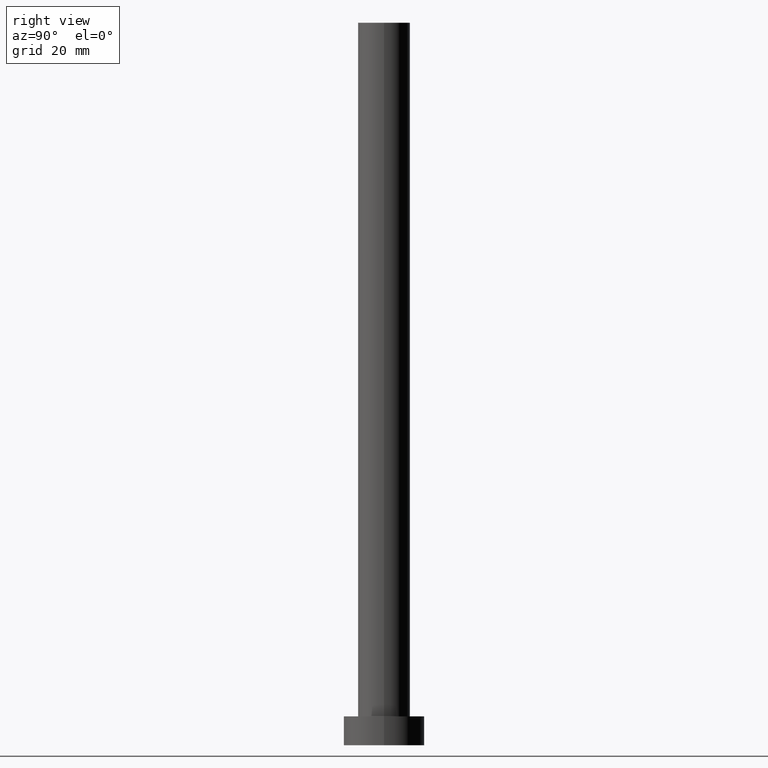
[diagram: clean part render]
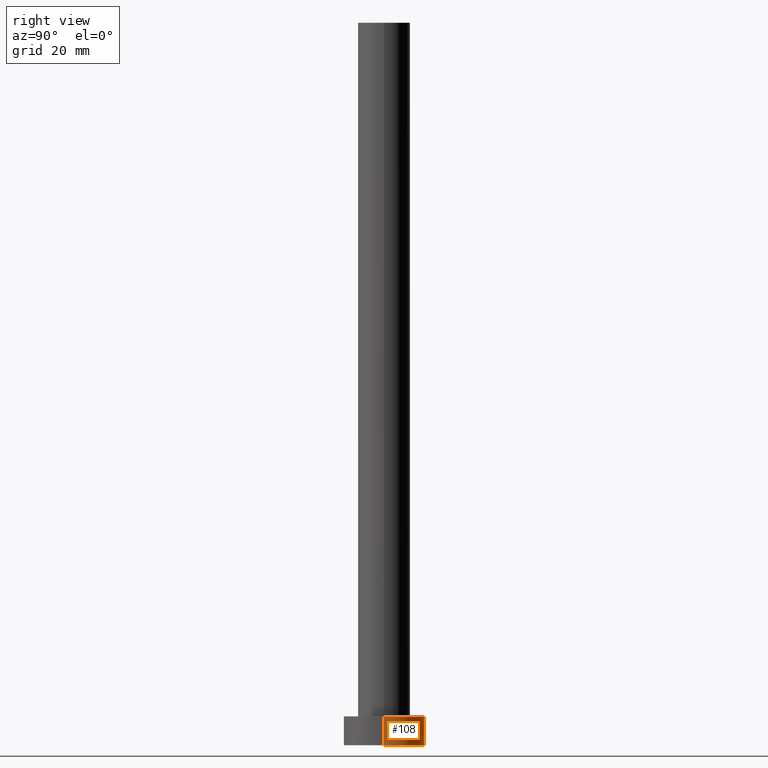
[diagram: same view with one face highlighted and labeled with its STEP entity id]
A machine part, right view. The second image highlights one B-rep face of the part: STEP entity #108.
In plain terms, the highlighted cylindrical surface (partial cylindrical patch) has radius 7 mm, axis along (-0, -0, -1).
Its self-contained STEP definition (entity closure, byte-faithful):
#5 = CARTESIAN_POINT ( 'NONE',  ( 7.000000000000000000, 8.572527594031473190E-16, 0.000000000000000000 ) ) ;
#6 = CYLINDRICAL_SURFACE ( 'NONE', #186, 7.000000000000000000 ) ;
#8 = CARTESIAN_POINT ( 'NONE',  ( -7.000000000000000000, 0.000000000000000000, 5.000000000000000000 ) ) ;
#23 = EDGE_CURVE ( 'NONE', #100, #162, #190, .T. ) ;
#30 = CIRCLE ( 'NONE', #81, 7.000000000000000000 ) ;
#33 = EDGE_CURVE ( 'NONE', #117, #162, #30, .T. ) ;
#41 = VERTEX_POINT ( 'NONE', #44 ) ;
#44 = CARTESIAN_POINT ( 'NONE',  ( 7.000000000000000000, 8.572527594031473190E-16, 5.000000000000000000 ) ) ;
#50 = CARTESIAN_POINT ( 'NONE',  ( -7.000000000000000000, 0.000000000000000000, 0.000000000000000000 ) ) ;
#70 = CARTESIAN_POINT ( 'NONE',  ( 0.000000000000000000, 0.000000000000000000, 5.000000000000000000 ) ) ;
#74 = AXIS2_PLACEMENT_3D ( 'NONE', #70, #91, #109 ) ;
#80 = DIRECTION ( 'NONE',  ( 0.000000000000000000, 0.000000000000000000, 1.000000000000000000 ) ) ;
#81 = AXIS2_PLACEMENT_3D ( 'NONE', #104, #80, #208 ) ;
#84 = DIRECTION ( 'NONE',  ( -1.000000000000000000, 0.000000000000000000, 0.000000000000000000 ) ) ;
#91 = DIRECTION ( 'NONE',  ( 0.000000000000000000, 0.000000000000000000, 1.000000000000000000 ) ) ;
#99 = VECTOR ( 'NONE', #219, 1000.000000000000000 ) ;
#100 = VERTEX_POINT ( 'NONE', #8 ) ;
#101 = CIRCLE ( 'NONE', #74, 7.000000000000000000 ) ;
#102 = DIRECTION ( 'NONE',  ( -0.000000000000000000, -0.000000000000000000, -1.000000000000000000 ) ) ;
#104 = CARTESIAN_POINT ( 'NONE',  ( 0.000000000000000000, 0.000000000000000000, 0.000000000000000000 ) ) ;
#108 = ADVANCED_FACE ( 'NONE', ( #167 ), #6, .T. ) ;
#109 = DIRECTION ( 'NONE',  ( 1.000000000000000000, 0.000000000000000000, 0.000000000000000000 ) ) ;
#112 = ORIENTED_EDGE ( 'NONE', *, *, #23, .F. ) ;
#115 = ORIENTED_EDGE ( 'NONE', *, *, #193, .F. ) ;
#117 = VERTEX_POINT ( 'NONE', #5 ) ;
#123 = CARTESIAN_POINT ( 'NONE',  ( -7.000000000000000000, 0.000000000000000000, 5.000000000000000000 ) ) ;
#129 = CARTESIAN_POINT ( 'NONE',  ( 7.000000000000000000, 8.572527594031473190E-16, 5.000000000000000000 ) ) ;
#149 = LINE ( 'NONE', #129, #241 ) ;
#162 = VERTEX_POINT ( 'NONE', #50 ) ;
#167 = FACE_OUTER_BOUND ( 'NONE', #235, .T. ) ;
#178 = ORIENTED_EDGE ( 'NONE', *, *, #223, .T. ) ;
#186 = AXIS2_PLACEMENT_3D ( 'NONE', #204, #102, #84 ) ;
#190 = LINE ( 'NONE', #123, #99 ) ;
#193 = EDGE_CURVE ( 'NONE', #41, #100, #101, .T. ) ;
#204 = CARTESIAN_POINT ( 'NONE',  ( 0.000000000000000000, 0.000000000000000000, 5.000000000000000000 ) ) ;
#208 = DIRECTION ( 'NONE',  ( 1.000000000000000000, 0.000000000000000000, 0.000000000000000000 ) ) ;
#212 = ORIENTED_EDGE ( 'NONE', *, *, #33, .T. ) ;
#219 = DIRECTION ( 'NONE',  ( -0.000000000000000000, -0.000000000000000000, -1.000000000000000000 ) ) ;
#223 = EDGE_CURVE ( 'NONE', #41, #117, #149, .T. ) ;
#235 = EDGE_LOOP ( 'NONE', ( #115, #178, #212, #112 ) ) ;
#241 = VECTOR ( 'NONE', #251, 1000.000000000000000 ) ;
#251 = DIRECTION ( 'NONE',  ( -0.000000000000000000, -0.000000000000000000, -1.000000000000000000 ) ) ;